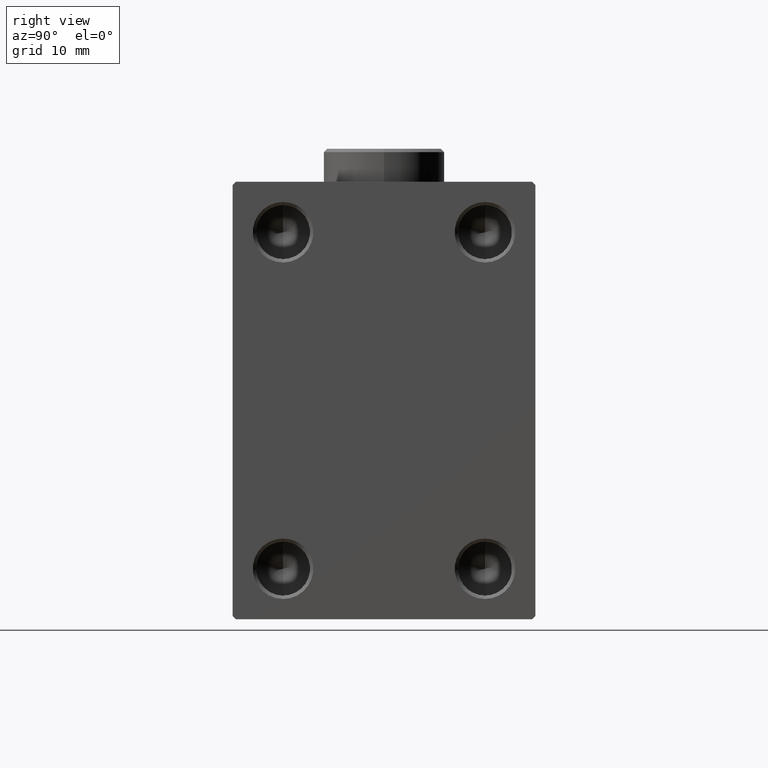
[diagram: clean part render]
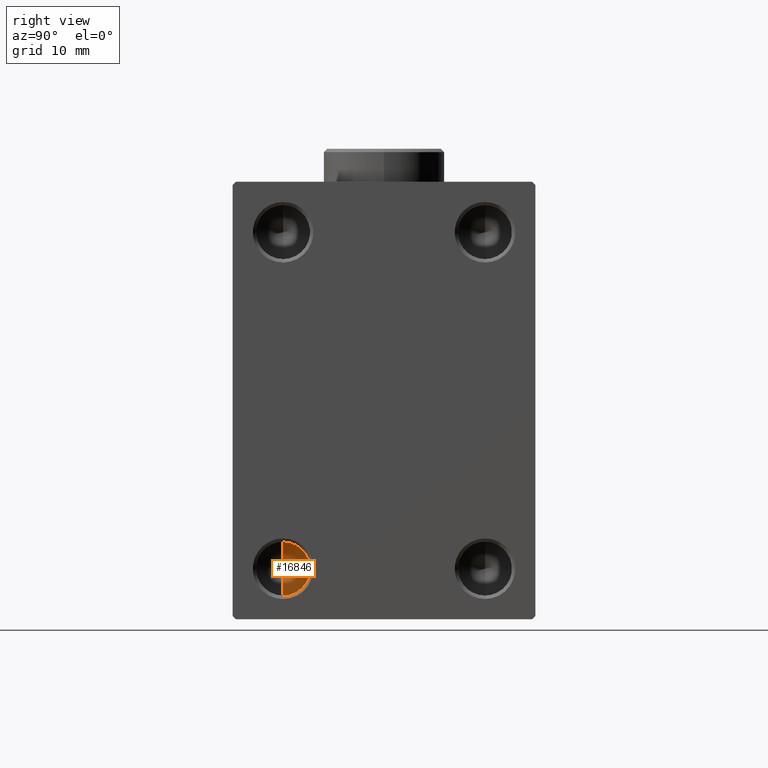
[diagram: same view with one face highlighted and labeled with its STEP entity id]
A machine part, right view. The second image highlights one B-rep face of the part: STEP entity #16846.
In plain terms, the highlighted conical surface has half-angle 59 deg.
Its self-contained STEP definition (entity closure, byte-faithful):
#683 = DIRECTION ( 'NONE',  ( 0.000000000000000000, 0.000000000000000000, 1.000000000000000000 ) ) ;
#1367 = CARTESIAN_POINT ( 'NONE',  ( 42.59655752388975714, -15.00000000000000533, -25.00000000000000000 ) ) ;
#3002 = EDGE_CURVE ( 'NONE', #32318, #10195, #39475, .T. ) ;
#3618 = DIRECTION ( 'NONE',  ( 0.000000000000000000, 0.000000000000000000, 1.000000000000000000 ) ) ;
#5091 = EDGE_LOOP ( 'NONE', ( #34145, #31650, #29560 ) ) ;
#6115 = VECTOR ( 'NONE', #28464, 1000.000000000000000 ) ;
#8897 = VECTOR ( 'NONE', #15061, 1000.000000000000000 ) ;
#10195 = VERTEX_POINT ( 'NONE', #31272 ) ;
#11512 = AXIS2_PLACEMENT_3D ( 'NONE', #25287, #42555, #3618 ) ;
#14384 = CARTESIAN_POINT ( 'NONE',  ( 45.00000000000000000, -15.00000000000000000, -21.00000000000000355 ) ) ;
#15061 = DIRECTION ( 'NONE',  ( 0.5150380749100547106, -1.049727191138618326E-16, -0.8571673007021120005 ) ) ;
#16846 = ADVANCED_FACE ( 'NONE', ( #42620 ), #39765, .F. ) ;
#17012 = VERTEX_POINT ( 'NONE', #1367 ) ;
#18529 = LINE ( 'NONE', #14384, #6115 ) ;
#22442 = CARTESIAN_POINT ( 'NONE',  ( 45.00000000000000000, -15.00000000000000000, -28.99999999999999645 ) ) ;
#25287 = CARTESIAN_POINT ( 'NONE',  ( 45.00000000000000000, -15.00000000000000000, -25.00000000000000000 ) ) ;
#28464 = DIRECTION ( 'NONE',  ( 0.5150380749100547106, 0.000000000000000000, 0.8571673007021120005 ) ) ;
#29560 = ORIENTED_EDGE ( 'NONE', *, *, #3002, .F. ) ;
#31272 = CARTESIAN_POINT ( 'NONE',  ( 45.00000000000000000, -15.00000000000000000, -28.99999999999999645 ) ) ;
#31650 = ORIENTED_EDGE ( 'NONE', *, *, #33141, .T. ) ;
#32135 = CARTESIAN_POINT ( 'NONE',  ( 45.00000000000000000, -15.00000000000000000, -21.00000000000000355 ) ) ;
#32318 = VERTEX_POINT ( 'NONE', #32135 ) ;
#33141 = EDGE_CURVE ( 'NONE', #17012, #10195, #33270, .T. ) ;
#33270 = LINE ( 'NONE', #22442, #8897 ) ;
#33873 = AXIS2_PLACEMENT_3D ( 'NONE', #35937, #38081, #683 ) ;
#34145 = ORIENTED_EDGE ( 'NONE', *, *, #43645, .F. ) ;
#35937 = CARTESIAN_POINT ( 'NONE',  ( 45.00000000000000000, -15.00000000000000000, -25.00000000000000000 ) ) ;
#38081 = DIRECTION ( 'NONE',  ( 1.000000000000000000, -0.000000000000000000, -0.000000000000000000 ) ) ;
#39475 = CIRCLE ( 'NONE', #11512, 3.999999999999996447 ) ;
#39765 = CONICAL_SURFACE ( 'NONE', #33873, 3.999999999999996447, 1.029744258676653867 ) ;
#42555 = DIRECTION ( 'NONE',  ( -1.000000000000000000, 0.000000000000000000, 0.000000000000000000 ) ) ;
#42620 = FACE_OUTER_BOUND ( 'NONE', #5091, .T. ) ;
#43645 = EDGE_CURVE ( 'NONE', #17012, #32318, #18529, .T. ) ;